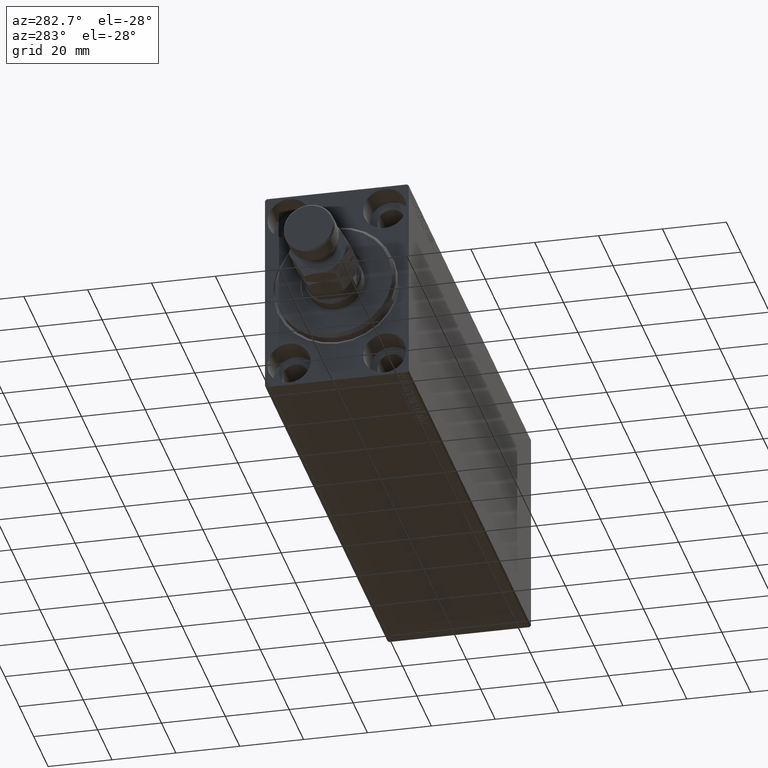
[diagram: clean part render]
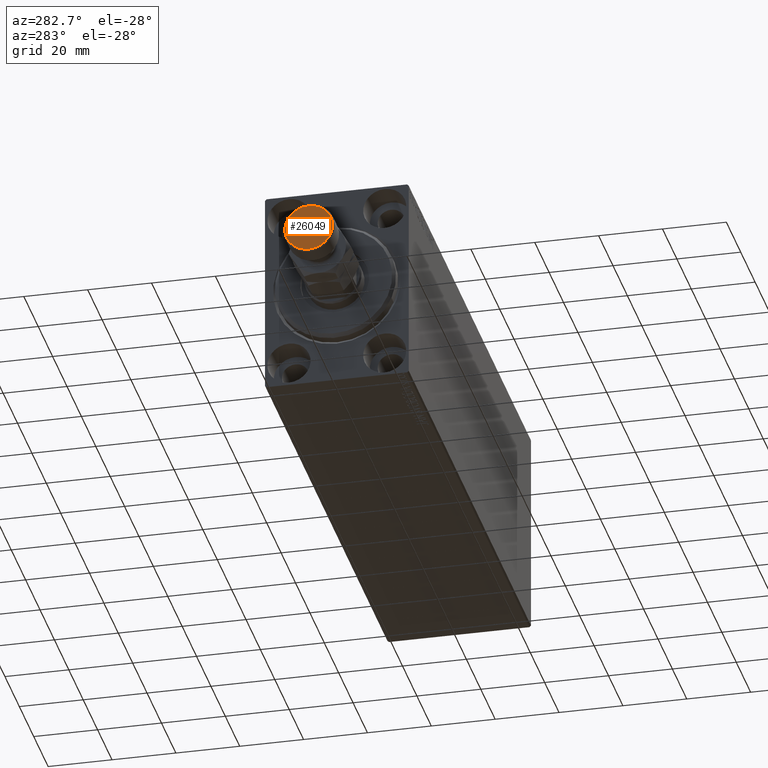
[diagram: same view with one face highlighted and labeled with its STEP entity id]
A machine part, auxiliary view. The second image highlights one B-rep face of the part: STEP entity #26049.
In plain terms, the highlighted planar face has unit normal (-1, 0, 0).
Its self-contained STEP definition (entity closure, byte-faithful):
#562 = CARTESIAN_POINT ( 'NONE',  ( -7.500000000000000000, 0.000000000000000000, 28.00000000000000000 ) ) ;
#3958 = DIRECTION ( 'NONE',  ( 1.000000000000000000, 0.000000000000000000, -0.000000000000000000 ) ) ;
#10395 = AXIS2_PLACEMENT_3D ( 'NONE', #28785, #42776, #3958 ) ;
#12363 = CIRCLE ( 'NONE', #35119, 7.500000000000000000 ) ;
#17274 = EDGE_CURVE ( 'NONE', #25636, #31093, #12363, .T. ) ;
#18223 = PLANE ( 'NONE',  #10395 ) ;
#20291 = DIRECTION ( 'NONE',  ( 1.000000000000000000, 0.000000000000000000, 0.000000000000000000 ) ) ;
#20623 = EDGE_LOOP ( 'NONE', ( #26282, #44258 ) ) ;
#21575 = CIRCLE ( 'NONE', #26726, 7.500000000000000000 ) ;
#21663 = FACE_OUTER_BOUND ( 'NONE', #20623, .T. ) ;
#25320 = CARTESIAN_POINT ( 'NONE',  ( 7.500000000000000000, 9.491012693391985815E-16, 28.00000000000000000 ) ) ;
#25636 = VERTEX_POINT ( 'NONE', #562 ) ;
#26049 = ADVANCED_FACE ( 'NONE', ( #21663 ), #18223, .T. ) ;
#26282 = ORIENTED_EDGE ( 'NONE', *, *, #17274, .T. ) ;
#26726 = AXIS2_PLACEMENT_3D ( 'NONE', #41098, #36952, #20291 ) ;
#28785 = CARTESIAN_POINT ( 'NONE',  ( 0.000000000000000000, 0.000000000000000000, 28.00000000000000000 ) ) ;
#29912 = CARTESIAN_POINT ( 'NONE',  ( 0.000000000000000000, 0.000000000000000000, 28.00000000000000000 ) ) ;
#31093 = VERTEX_POINT ( 'NONE', #25320 ) ;
#33614 = EDGE_CURVE ( 'NONE', #31093, #25636, #21575, .T. ) ;
#35119 = AXIS2_PLACEMENT_3D ( 'NONE', #29912, #43900, #42373 ) ;
#36952 = DIRECTION ( 'NONE',  ( 0.000000000000000000, 0.000000000000000000, 1.000000000000000000 ) ) ;
#41098 = CARTESIAN_POINT ( 'NONE',  ( 0.000000000000000000, 0.000000000000000000, 28.00000000000000000 ) ) ;
#42373 = DIRECTION ( 'NONE',  ( 1.000000000000000000, 0.000000000000000000, 0.000000000000000000 ) ) ;
#42776 = DIRECTION ( 'NONE',  ( 0.000000000000000000, 0.000000000000000000, 1.000000000000000000 ) ) ;
#43900 = DIRECTION ( 'NONE',  ( 0.000000000000000000, 0.000000000000000000, 1.000000000000000000 ) ) ;
#44258 = ORIENTED_EDGE ( 'NONE', *, *, #33614, .T. ) ;